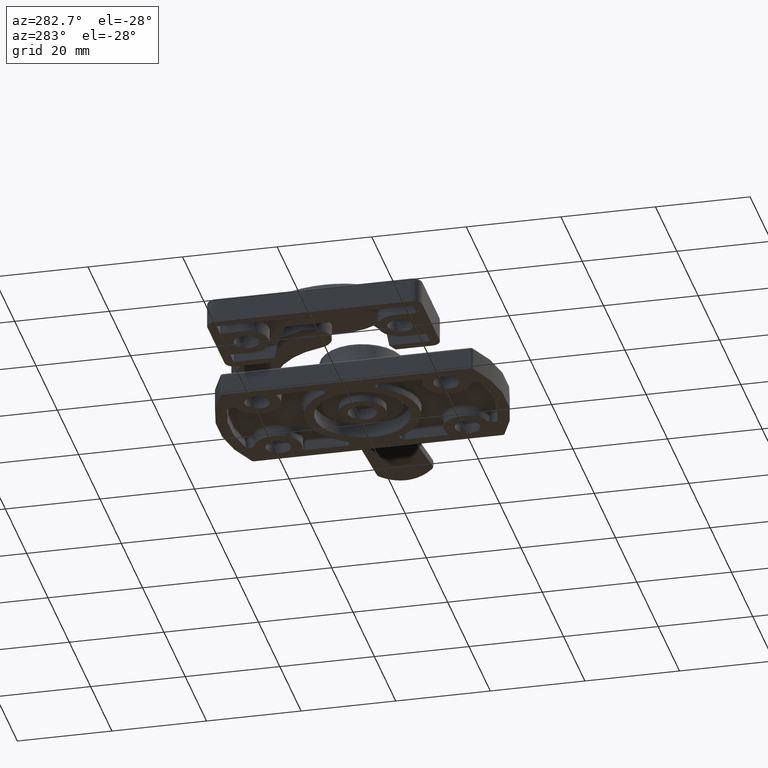
[diagram: clean part render]
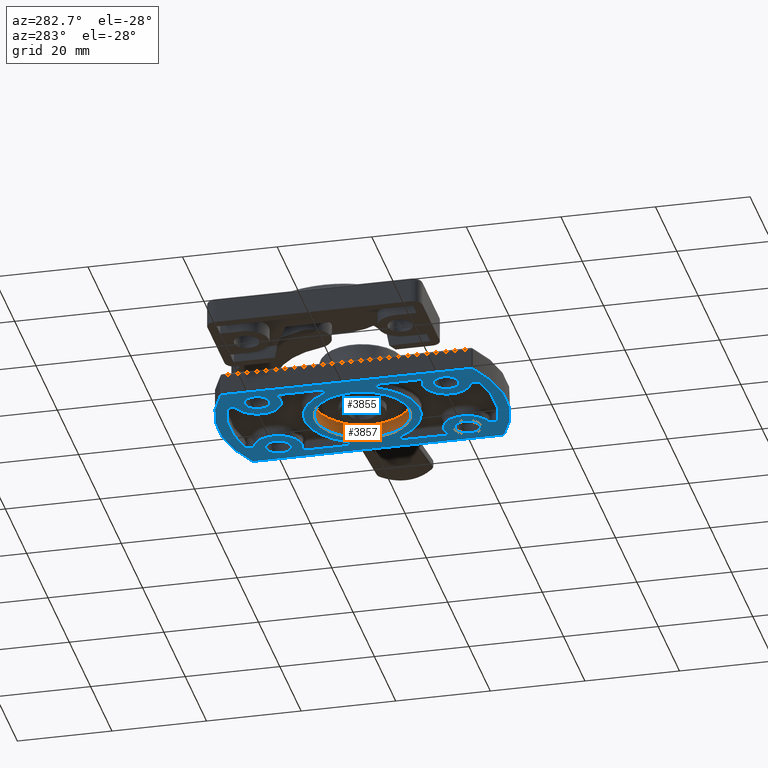
[diagram: same view with the hole feature highlighted: cylindrical wall and planar end face, labeled with their STEP entity ids]
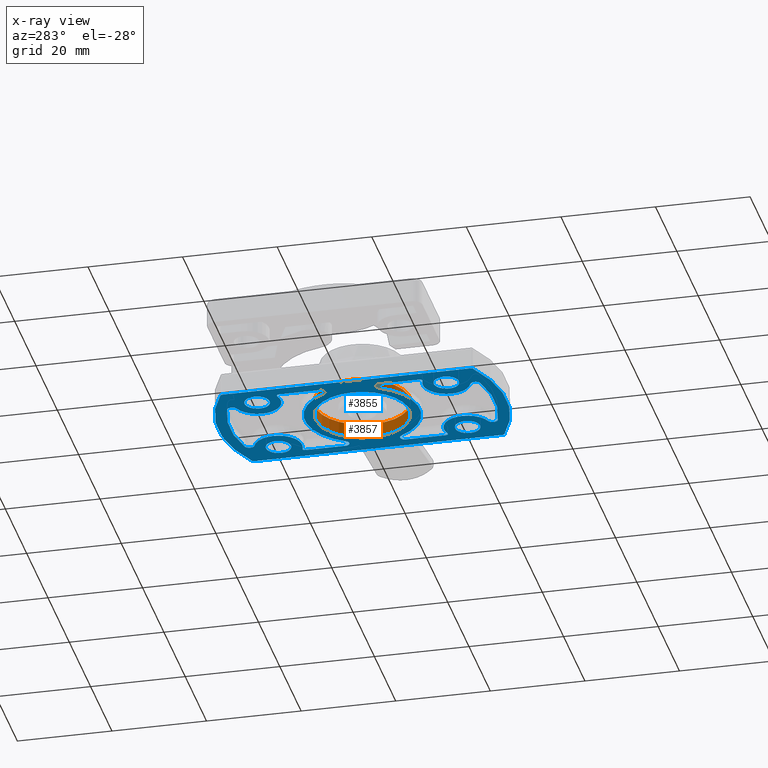
[diagram: x-ray of the same camera — body ghosted, the hole faces saturated]
A machine part, auxiliary view. The highlighted faces form one hole feature of diameter 20 mm: the cylindrical wall (entity #3857, orange) and its adjacent planar end face (entity #3855, blue) — they share a circular edge in the B-rep.
The next image is the same camera in x-ray (body ghosted, the hole faces saturated) — the bore reads through the body.
Wall:
#121=FACE_BOUND('',#1076,.T.);
#656=CYLINDRICAL_SURFACE('',#4231,10.);
#804=FACE_OUTER_BOUND('',#1075,.T.);
#1075=EDGE_LOOP('',(#2938));
#1076=EDGE_LOOP('',(#2939));
#1399=CIRCLE('',#4224,10.);
#1405=CIRCLE('',#4232,10.);
#1752=VERTEX_POINT('',#6347);
#1758=VERTEX_POINT('',#6361);
#2189=EDGE_CURVE('',#1752,#1752,#1399,.T.);
#2195=EDGE_CURVE('',#1758,#1758,#1405,.T.);
#2938=ORIENTED_EDGE('',*,*,#2195,.F.);
#2939=ORIENTED_EDGE('',*,*,#2189,.F.);
#3857=ADVANCED_FACE('',(#804,#121),#656,.F.);
#4224=AXIS2_PLACEMENT_3D('',#6348,#4950,#4951);
#4231=AXIS2_PLACEMENT_3D('',#6360,#4964,#4965);
#4232=AXIS2_PLACEMENT_3D('',#6362,#4966,#4967);
#4950=DIRECTION('center_axis',(0.,0.,1.));
#4951=DIRECTION('ref_axis',(1.,0.,0.));
#4964=DIRECTION('center_axis',(0.,0.,1.));
#4965=DIRECTION('ref_axis',(1.,0.,0.));
#4966=DIRECTION('center_axis',(0.,0.,-1.));
#4967=DIRECTION('ref_axis',(1.,0.,0.));
#6347=CARTESIAN_POINT('',(-10.,1.22464679914735E-15,0.));
#6348=CARTESIAN_POINT('Origin',(0.,0.,0.));
#6360=CARTESIAN_POINT('Origin',(0.,0.,0.));
#6361=CARTESIAN_POINT('',(-10.,1.22464679914735E-15,3.));
#6362=CARTESIAN_POINT('Origin',(0.,0.,3.));
End face:
#109=FACE_BOUND('',#1062,.T.);
#110=FACE_BOUND('',#1063,.T.);
#111=FACE_BOUND('',#1064,.T.);
#112=FACE_BOUND('',#1065,.T.);
#113=FACE_BOUND('',#1066,.T.);
#114=FACE_BOUND('',#1067,.T.);
#115=FACE_BOUND('',#1068,.T.);
#173=PLANE('',#4218);
#252=LINE('',#5905,#441);
#257=LINE('',#5921,#446);
#262=LINE('',#5938,#451);
#266=LINE('',#5952,#455);
#278=LINE('',#6212,#467);
#283=LINE('',#6228,#472);
#292=LINE('',#6259,#481);
#294=LINE('',#6267,#483);
#307=LINE('',#6335,#496);
#308=LINE('',#6338,#497);
#441=VECTOR('',#4625,0.130739666962896);
#446=VECTOR('',#4644,0.130739666962896);
#451=VECTOR('',#4665,8.49902510702414);
#455=VECTOR('',#4683,8.49902510702413);
#467=VECTOR('',#4785,0.130739666962896);
#472=VECTOR('',#4804,8.49902510702414);
#481=VECTOR('',#4841,0.130739666962896);
#483=VECTOR('',#4853,8.49902510702413);
#496=VECTOR('',#4936,52.5261839466756);
#497=VECTOR('',#4941,52.5261839466756);
#802=FACE_OUTER_BOUND('',#1061,.T.);
#1061=EDGE_LOOP('',(#2884,#2885,#2886,#2887,#2888,#2889,#2890,#2891));
#1062=EDGE_LOOP('',(#2892,#2893,#2894,#2895,#2896,#2897,#2898,#2899,#2900,
#2901,#2902,#2903,#2904,#2905,#2906,#2907));
#1063=EDGE_LOOP('',(#2908,#2909,#2910,#2911,#2912,#2913,#2914,#2915,#2916,
#2917,#2918,#2919,#2920,#2921,#2922,#2923));
#1064=EDGE_LOOP('',(#2924));
#1065=EDGE_LOOP('',(#2925));
#1066=EDGE_LOOP('',(#2926));
#1067=EDGE_LOOP('',(#2927));
#1068=EDGE_LOOP('',(#2928));
#1321=CIRCLE('',#4084,0.5);
#1322=CIRCLE('',#4086,5.);
#1323=CIRCLE('',#4088,1.);
#1324=CIRCLE('',#4091,1.);
#1325=CIRCLE('',#4093,28.);
#1326=CIRCLE('',#4095,1.);
#1327=CIRCLE('',#4099,1.);
#1328=CIRCLE('',#4101,12.15);
#1329=CIRCLE('',#4103,0.999999999999999);
#1330=CIRCLE('',#4106,1.);
#1331=CIRCLE('',#4108,5.);
#1332=CIRCLE('',#4110,0.5);
#1361=CIRCLE('',#4155,1.);
#1362=CIRCLE('',#4158,1.);
#1363=CIRCLE('',#4160,5.);
#1364=CIRCLE('',#4162,0.5);
#1365=CIRCLE('',#4165,0.999999999999999);
#1366=CIRCLE('',#4167,12.15);
#1367=CIRCLE('',#4170,1.);
#1368=CIRCLE('',#4172,1.);
#1369=CIRCLE('',#4174,5.);
#1370=CIRCLE('',#4176,1.);
#1371=CIRCLE('',#4179,28.);
#1372=CIRCLE('',#4181,0.5);
#1376=CIRCLE('',#4188,0.5);
#1380=CIRCLE('',#4194,0.5);
#1386=CIRCLE('',#4203,0.5);
#1390=CIRCLE('',#4209,0.5);
#1393=CIRCLE('',#4216,30.5);
#1394=CIRCLE('',#4219,30.5);
#1395=CIRCLE('',#4220,2.65);
#1396=CIRCLE('',#4221,2.65);
#1397=CIRCLE('',#4222,2.65);
#1398=CIRCLE('',#4223,2.65);
#1399=CIRCLE('',#4224,10.);
#1672=VERTEX_POINT('',#5889);
#1673=VERTEX_POINT('',#5891);
#1674=VERTEX_POINT('',#5895);
#1675=VERTEX_POINT('',#5899);
#1676=VERTEX_POINT('',#5903);
#1677=VERTEX_POINT('',#5907);
#1678=VERTEX_POINT('',#5911);
#1679=VERTEX_POINT('',#5915);
#1680=VERTEX_POINT('',#5919);
#1681=VERTEX_POINT('',#5924);
#1682=VERTEX_POINT('',#5926);
#1683=VERTEX_POINT('',#5930);
#1684=VERTEX_POINT('',#5934);
#1685=VERTEX_POINT('',#5940);
#1686=VERTEX_POINT('',#5944);
#1687=VERTEX_POINT('',#5948);
#1712=VERTEX_POINT('',#6204);
#1713=VERTEX_POINT('',#6206);
#1714=VERTEX_POINT('',#6210);
#1715=VERTEX_POINT('',#6214);
#1716=VERTEX_POINT('',#6218);
#1717=VERTEX_POINT('',#6222);
#1718=VERTEX_POINT('',#6226);
#1719=VERTEX_POINT('',#6230);
#1720=VERTEX_POINT('',#6234);
#1721=VERTEX_POINT('',#6239);
#1722=VERTEX_POINT('',#6243);
#1723=VERTEX_POINT('',#6245);
#1724=VERTEX_POINT('',#6249);
#1725=VERTEX_POINT('',#6253);
#1726=VERTEX_POINT('',#6255);
#1727=VERTEX_POINT('',#6263);
#1731=VERTEX_POINT('',#6276);
#1732=VERTEX_POINT('',#6277);
#1736=VERTEX_POINT('',#6289);
#1737=VERTEX_POINT('',#6290);
#1741=VERTEX_POINT('',#6305);
#1742=VERTEX_POINT('',#6306);
#1746=VERTEX_POINT('',#6318);
#1747=VERTEX_POINT('',#6319);
#1748=VERTEX_POINT('',#6339);
#1749=VERTEX_POINT('',#6341);
#1750=VERTEX_POINT('',#6343);
#1751=VERTEX_POINT('',#6345);
#1752=VERTEX_POINT('',#6347);
#2046=EDGE_CURVE('',#1673,#1672,#1321,.T.);
#2049=EDGE_CURVE('',#1672,#1674,#1322,.T.);
#2051=EDGE_CURVE('',#1675,#1674,#1323,.T.);
#2053=EDGE_CURVE('',#1675,#1676,#252,.T.);
#2055=EDGE_CURVE('',#1677,#1676,#1324,.T.);
#2057=EDGE_CURVE('',#1677,#1678,#1325,.T.);
#2059=EDGE_CURVE('',#1679,#1678,#1326,.T.);
#2061=EDGE_CURVE('',#1679,#1680,#257,.T.);
#2063=EDGE_CURVE('',#1682,#1681,#1327,.F.);
#2066=EDGE_CURVE('',#1681,#1683,#1328,.T.);
#2068=EDGE_CURVE('',#1683,#1684,#1329,.F.);
#2069=EDGE_CURVE('',#1684,#1673,#262,.T.);
#2071=EDGE_CURVE('',#1685,#1680,#1330,.T.);
#2073=EDGE_CURVE('',#1685,#1686,#1331,.T.);
#2075=EDGE_CURVE('',#1686,#1687,#1332,.T.);
#2076=EDGE_CURVE('',#1687,#1682,#266,.T.);
#2118=EDGE_CURVE('',#1712,#1713,#1361,.T.);
#2121=EDGE_CURVE('',#1712,#1714,#278,.T.);
#2123=EDGE_CURVE('',#1715,#1714,#1362,.T.);
#2125=EDGE_CURVE('',#1715,#1716,#1363,.T.);
#2127=EDGE_CURVE('',#1716,#1717,#1364,.T.);
#2129=EDGE_CURVE('',#1717,#1718,#283,.T.);
#2131=EDGE_CURVE('',#1718,#1719,#1365,.F.);
#2133=EDGE_CURVE('',#1719,#1720,#1366,.T.);
#2135=EDGE_CURVE('',#1720,#1721,#1367,.F.);
#2137=EDGE_CURVE('',#1722,#1723,#1368,.T.);
#2139=EDGE_CURVE('',#1724,#1723,#1369,.T.);
#2142=EDGE_CURVE('',#1725,#1726,#1370,.T.);
#2144=EDGE_CURVE('',#1722,#1726,#292,.T.);
#2145=EDGE_CURVE('',#1725,#1713,#1371,.T.);
#2146=EDGE_CURVE('',#1727,#1724,#1372,.T.);
#2148=EDGE_CURVE('',#1721,#1727,#294,.T.);
#2152=EDGE_CURVE('',#1731,#1732,#1376,.T.);
#2158=EDGE_CURVE('',#1736,#1737,#1380,.T.);
#2166=EDGE_CURVE('',#1741,#1742,#1386,.T.);
#2172=EDGE_CURVE('',#1746,#1747,#1390,.T.);
#2181=EDGE_CURVE('',#1731,#1737,#1393,.T.);
#2182=EDGE_CURVE('',#1736,#1747,#307,.T.);
#2183=EDGE_CURVE('',#1746,#1742,#1394,.T.);
#2184=EDGE_CURVE('',#1741,#1732,#308,.T.);
#2185=EDGE_CURVE('',#1748,#1748,#1395,.T.);
#2186=EDGE_CURVE('',#1749,#1749,#1396,.T.);
#2187=EDGE_CURVE('',#1750,#1750,#1397,.T.);
#2188=EDGE_CURVE('',#1751,#1751,#1398,.T.);
#2189=EDGE_CURVE('',#1752,#1752,#1399,.T.);
#2884=ORIENTED_EDGE('',*,*,#2152,.F.);
#2885=ORIENTED_EDGE('',*,*,#2181,.T.);
#2886=ORIENTED_EDGE('',*,*,#2158,.F.);
#2887=ORIENTED_EDGE('',*,*,#2182,.T.);
#2888=ORIENTED_EDGE('',*,*,#2172,.F.);
#2889=ORIENTED_EDGE('',*,*,#2183,.T.);
#2890=ORIENTED_EDGE('',*,*,#2166,.F.);
#2891=ORIENTED_EDGE('',*,*,#2184,.T.);
#2892=ORIENTED_EDGE('',*,*,#2063,.T.);
#2893=ORIENTED_EDGE('',*,*,#2066,.T.);
#2894=ORIENTED_EDGE('',*,*,#2068,.T.);
#2895=ORIENTED_EDGE('',*,*,#2069,.T.);
#2896=ORIENTED_EDGE('',*,*,#2046,.T.);
#2897=ORIENTED_EDGE('',*,*,#2049,.T.);
#2898=ORIENTED_EDGE('',*,*,#2051,.F.);
#2899=ORIENTED_EDGE('',*,*,#2053,.T.);
#2900=ORIENTED_EDGE('',*,*,#2055,.F.);
#2901=ORIENTED_EDGE('',*,*,#2057,.T.);
#2902=ORIENTED_EDGE('',*,*,#2059,.F.);
#2903=ORIENTED_EDGE('',*,*,#2061,.T.);
#2904=ORIENTED_EDGE('',*,*,#2071,.F.);
#2905=ORIENTED_EDGE('',*,*,#2073,.T.);
#2906=ORIENTED_EDGE('',*,*,#2075,.T.);
#2907=ORIENTED_EDGE('',*,*,#2076,.T.);
#2908=ORIENTED_EDGE('',*,*,#2127,.T.);
#2909=ORIENTED_EDGE('',*,*,#2129,.T.);
#2910=ORIENTED_EDGE('',*,*,#2131,.T.);
#2911=ORIENTED_EDGE('',*,*,#2133,.T.);
#2912=ORIENTED_EDGE('',*,*,#2135,.T.);
#2913=ORIENTED_EDGE('',*,*,#2148,.T.);
#2914=ORIENTED_EDGE('',*,*,#2146,.T.);
#2915=ORIENTED_EDGE('',*,*,#2139,.T.);
#2916=ORIENTED_EDGE('',*,*,#2137,.F.);
#2917=ORIENTED_EDGE('',*,*,#2144,.T.);
#2918=ORIENTED_EDGE('',*,*,#2142,.F.);
#2919=ORIENTED_EDGE('',*,*,#2145,.T.);
#2920=ORIENTED_EDGE('',*,*,#2118,.F.);
#2921=ORIENTED_EDGE('',*,*,#2121,.T.);
#2922=ORIENTED_EDGE('',*,*,#2123,.F.);
#2923=ORIENTED_EDGE('',*,*,#2125,.T.);
#2924=ORIENTED_EDGE('',*,*,#2185,.T.);
#2925=ORIENTED_EDGE('',*,*,#2186,.T.);
#2926=ORIENTED_EDGE('',*,*,#2187,.T.);
#2927=ORIENTED_EDGE('',*,*,#2188,.T.);
#2928=ORIENTED_EDGE('',*,*,#2189,.T.);
#3855=ADVANCED_FACE('',(#802,#109,#110,#111,#112,#113,#114,#115),#173,.F.);
#4084=AXIS2_PLACEMENT_3D('',#5892,#4609,#4610);
#4086=AXIS2_PLACEMENT_3D('',#5897,#4615,#4616);
#4088=AXIS2_PLACEMENT_3D('',#5901,#4620,#4621);
#4091=AXIS2_PLACEMENT_3D('',#5909,#4629,#4630);
#4093=AXIS2_PLACEMENT_3D('',#5913,#4634,#4635);
#4095=AXIS2_PLACEMENT_3D('',#5917,#4639,#4640);
#4099=AXIS2_PLACEMENT_3D('',#5927,#4650,#4651);
#4101=AXIS2_PLACEMENT_3D('',#5932,#4656,#4657);
#4103=AXIS2_PLACEMENT_3D('',#5936,#4661,#4662);
#4106=AXIS2_PLACEMENT_3D('',#5942,#4669,#4670);
#4108=AXIS2_PLACEMENT_3D('',#5946,#4674,#4675);
#4110=AXIS2_PLACEMENT_3D('',#5950,#4679,#4680);
#4155=AXIS2_PLACEMENT_3D('',#6207,#4779,#4780);
#4158=AXIS2_PLACEMENT_3D('',#6216,#4789,#4790);
#4160=AXIS2_PLACEMENT_3D('',#6220,#4794,#4795);
#4162=AXIS2_PLACEMENT_3D('',#6224,#4799,#4800);
#4165=AXIS2_PLACEMENT_3D('',#6232,#4808,#4809);
#4167=AXIS2_PLACEMENT_3D('',#6236,#4813,#4814);
#4170=AXIS2_PLACEMENT_3D('',#6241,#4820,#4821);
#4172=AXIS2_PLACEMENT_3D('',#6246,#4825,#4826);
#4174=AXIS2_PLACEMENT_3D('',#6250,#4830,#4831);
#4176=AXIS2_PLACEMENT_3D('',#6256,#4836,#4837);
#4179=AXIS2_PLACEMENT_3D('',#6261,#4844,#4845);
#4181=AXIS2_PLACEMENT_3D('',#6264,#4848,#4849);
#4188=AXIS2_PLACEMENT_3D('',#6278,#4864,#4865);
#4194=AXIS2_PLACEMENT_3D('',#6291,#4878,#4879);
#4203=AXIS2_PLACEMENT_3D('',#6307,#4898,#4899);
#4209=AXIS2_PLACEMENT_3D('',#6320,#4912,#4913);
#4216=AXIS2_PLACEMENT_3D('',#6333,#4932,#4933);
#4218=AXIS2_PLACEMENT_3D('',#6336,#4937,#4938);
#4219=AXIS2_PLACEMENT_3D('',#6337,#4939,#4940);
#4220=AXIS2_PLACEMENT_3D('',#6340,#4942,#4943);
#4221=AXIS2_PLACEMENT_3D('',#6342,#4944,#4945);
#4222=AXIS2_PLACEMENT_3D('',#6344,#4946,#4947);
#4223=AXIS2_PLACEMENT_3D('',#6346,#4948,#4949);
#4224=AXIS2_PLACEMENT_3D('',#6348,#4950,#4951);
#4609=DIRECTION('center_axis',(0.,0.,1.));
#4610=DIRECTION('ref_axis',(1.,0.,0.));
#4615=DIRECTION('center_axis',(0.,0.,-1.));
#4616=DIRECTION('ref_axis',(0.200000000000001,-0.979795897113271,0.));
#4620=DIRECTION('center_axis',(0.,0.,-1.));
#4621=DIRECTION('ref_axis',(0.816496580927728,-0.577350269189623,0.));
#4625=DIRECTION('',(0.,1.,0.));
#4629=DIRECTION('center_axis',(0.,0.,-1.));
#4630=DIRECTION('ref_axis',(0.805076485899414,0.593171014001739,0.));
#4634=DIRECTION('center_axis',(0.,0.,1.));
#4635=DIRECTION('ref_axis',(0.321428571428571,0.946933827397347,0.));
#4639=DIRECTION('center_axis',(0.,0.,-1.));
#4640=DIRECTION('ref_axis',(-0.805076485899415,0.593171014001738,0.));
#4644=DIRECTION('',(0.,-1.,0.));
#4650=DIRECTION('center_axis',(0.,0.,-1.));
#4651=DIRECTION('ref_axis',(1.,0.,0.));
#4656=DIRECTION('center_axis',(0.,0.,-1.));
#4657=DIRECTION('ref_axis',(1.,0.,0.));
#4661=DIRECTION('center_axis',(0.,0.,-1.));
#4662=DIRECTION('ref_axis',(-1.,0.,0.));
#4665=DIRECTION('',(2.13987450635274E-16,1.,0.));
#4669=DIRECTION('center_axis',(0.,0.,-1.));
#4670=DIRECTION('ref_axis',(-0.816496580927726,-0.577350269189626,0.));
#4674=DIRECTION('center_axis',(0.,0.,-1.));
#4675=DIRECTION('ref_axis',(0.363636363636364,0.9315409787236,0.));
#4679=DIRECTION('center_axis',(0.,0.,1.));
#4680=DIRECTION('ref_axis',(0.363636363636367,0.931540978723599,0.));
#4683=DIRECTION('',(0.,-1.,0.));
#4779=DIRECTION('center_axis',(0.,0.,-1.));
#4780=DIRECTION('ref_axis',(0.805076485899414,-0.593171014001739,0.));
#4785=DIRECTION('',(0.,1.,0.));
#4789=DIRECTION('center_axis',(0.,0.,-1.));
#4790=DIRECTION('ref_axis',(0.816496580927728,0.577350269189623,0.));
#4794=DIRECTION('center_axis',(0.,0.,-1.));
#4795=DIRECTION('ref_axis',(0.200000000000001,0.979795897113271,0.));
#4799=DIRECTION('center_axis',(0.,0.,1.));
#4800=DIRECTION('ref_axis',(1.,0.,0.));
#4804=DIRECTION('',(-2.13987450635274E-16,1.,0.));
#4808=DIRECTION('center_axis',(0.,0.,-1.));
#4809=DIRECTION('ref_axis',(-1.,0.,0.));
#4813=DIRECTION('center_axis',(0.,0.,-1.));
#4814=DIRECTION('ref_axis',(1.,0.,0.));
#4820=DIRECTION('center_axis',(0.,0.,-1.));
#4821=DIRECTION('ref_axis',(1.,0.,0.));
#4825=DIRECTION('center_axis',(0.,0.,-1.));
#4826=DIRECTION('ref_axis',(-0.816496580927726,0.577350269189626,0.));
#4830=DIRECTION('center_axis',(0.,0.,-1.));
#4831=DIRECTION('ref_axis',(0.363636363636364,-0.9315409787236,0.));
#4836=DIRECTION('center_axis',(0.,0.,-1.));
#4837=DIRECTION('ref_axis',(-0.805076485899415,-0.593171014001738,0.));
#4841=DIRECTION('',(0.,-1.,0.));
#4844=DIRECTION('center_axis',(0.,0.,1.));
#4845=DIRECTION('ref_axis',(0.321428571428571,-0.946933827397347,0.));
#4848=DIRECTION('center_axis',(0.,0.,1.));
#4849=DIRECTION('ref_axis',(0.363636363636367,-0.931540978723599,0.));
#4853=DIRECTION('',(0.,-1.,0.));
#4864=DIRECTION('center_axis',(0.,0.,1.));
#4865=DIRECTION('ref_axis',(-0.861200712184254,0.508265022732564,0.));
#4878=DIRECTION('center_axis',(0.,0.,1.));
#4879=DIRECTION('ref_axis',(0.861200712184255,0.508265022732562,0.));
#4898=DIRECTION('center_axis',(0.,0.,1.));
#4899=DIRECTION('ref_axis',(-0.861200712184252,-0.508265022732567,0.));
#4912=DIRECTION('center_axis',(0.,0.,1.));
#4913=DIRECTION('ref_axis',(0.861200712184252,-0.508265022732567,0.));
#4932=DIRECTION('center_axis',(0.,0.,-1.));
#4933=DIRECTION('ref_axis',(-0.491803278688525,-0.870706342615705,0.));
#4936=DIRECTION('',(4.1806006369944E-17,-1.,0.));
#4937=DIRECTION('center_axis',(0.,0.,1.));
#4938=DIRECTION('ref_axis',(1.,0.,0.));
#4939=DIRECTION('center_axis',(0.,0.,-1.));
#4940=DIRECTION('ref_axis',(0.491803278688525,0.870706342615705,0.));
#4941=DIRECTION('',(0.,1.,0.));
#4942=DIRECTION('center_axis',(0.,0.,1.));
#4943=DIRECTION('ref_axis',(1.,0.,0.));
#4944=DIRECTION('center_axis',(0.,0.,1.));
#4945=DIRECTION('ref_axis',(1.,0.,0.));
#4946=DIRECTION('center_axis',(0.,0.,1.));
#4947=DIRECTION('ref_axis',(1.,0.,0.));
#4948=DIRECTION('center_axis',(0.,0.,1.));
#4949=DIRECTION('ref_axis',(1.,0.,0.));
#4950=DIRECTION('center_axis',(0.,0.,1.));
#4951=DIRECTION('ref_axis',(1.,0.,0.));
#5889=CARTESIAN_POINT('',(11.8181818181818,15.342295106382,0.));
#5891=CARTESIAN_POINT('',(12.5,14.8765246170202,0.));
#5892=CARTESIAN_POINT('Origin',(12.,14.8765246170202,0.));
#5895=CARTESIAN_POINT('',(8.33333333333333,24.7140452079103,0.));
#5897=CARTESIAN_POINT('Origin',(10.,20.,0.));
#5899=CARTESIAN_POINT('',(9.,25.6568542494924,0.));
#5901=CARTESIAN_POINT('Origin',(8.,25.6568542494924,0.));
#5903=CARTESIAN_POINT('',(9.,25.7875939164553,0.));
#5905=CARTESIAN_POINT('',(9.,13.2570735835629,0.));
#5907=CARTESIAN_POINT('',(8.29629629629629,26.7426899874351,0.));
#5909=CARTESIAN_POINT('Origin',(8.,25.7875939164553,0.));
#5911=CARTESIAN_POINT('',(-8.2962962962963,26.7426899874351,0.));
#5913=CARTESIAN_POINT('Origin',(0.,0.,0.));
#5915=CARTESIAN_POINT('',(-9.,25.7875939164553,0.));
#5917=CARTESIAN_POINT('Origin',(-8.,25.7875939164553,0.));
#5919=CARTESIAN_POINT('',(-9.,25.6568542494924,0.));
#5921=CARTESIAN_POINT('',(-9.,12.4494897427832,0.));
#5924=CARTESIAN_POINT('',(-10.6254752851711,5.89251855866557,0.));
#5926=CARTESIAN_POINT('',(-12.5,6.37749950999607,0.));
#5927=CARTESIAN_POINT('Origin',(-11.5,6.37749950999607,0.));
#5930=CARTESIAN_POINT('',(10.6254752851711,5.89251855866556,0.));
#5932=CARTESIAN_POINT('Origin',(0.,0.,0.));
#5934=CARTESIAN_POINT('',(12.5,6.37749950999606,0.));
#5936=CARTESIAN_POINT('Origin',(11.5,6.37749950999606,0.));
#5938=CARTESIAN_POINT('',(12.5,7.4382623085101,0.));
#5940=CARTESIAN_POINT('',(-8.33333333333333,24.7140452079103,0.));
#5942=CARTESIAN_POINT('Origin',(-8.,25.6568542494924,0.));
#5944=CARTESIAN_POINT('',(-11.8181818181818,15.342295106382,0.));
#5946=CARTESIAN_POINT('Origin',(-10.,20.,0.));
#5948=CARTESIAN_POINT('',(-12.5,14.8765246170202,0.));
#5950=CARTESIAN_POINT('Origin',(-12.,14.8765246170202,0.));
#5952=CARTESIAN_POINT('',(-12.5,2.25,0.));
#6204=CARTESIAN_POINT('',(9.,-25.7875939164553,0.));
#6206=CARTESIAN_POINT('',(8.29629629629629,-26.7426899874351,0.));
#6207=CARTESIAN_POINT('Origin',(8.,-25.7875939164553,0.));
#6210=CARTESIAN_POINT('',(9.,-25.6568542494924,0.));
#6212=CARTESIAN_POINT('',(9.,-13.2570735835629,0.));
#6214=CARTESIAN_POINT('',(8.33333333333333,-24.7140452079103,0.));
#6216=CARTESIAN_POINT('Origin',(8.,-25.6568542494924,0.));
#6218=CARTESIAN_POINT('',(11.8181818181818,-15.342295106382,0.));
#6220=CARTESIAN_POINT('Origin',(10.,-20.,0.));
#6222=CARTESIAN_POINT('',(12.5,-14.8765246170202,0.));
#6224=CARTESIAN_POINT('Origin',(12.,-14.8765246170202,0.));
#6226=CARTESIAN_POINT('',(12.5,-6.37749950999606,0.));
#6228=CARTESIAN_POINT('',(12.5,-7.4382623085101,0.));
#6230=CARTESIAN_POINT('',(10.6254752851711,-5.89251855866556,0.));
#6232=CARTESIAN_POINT('Origin',(11.5,-6.37749950999606,0.));
#6234=CARTESIAN_POINT('',(-10.6254752851711,-5.89251855866557,0.));
#6236=CARTESIAN_POINT('Origin',(0.,0.,0.));
#6239=CARTESIAN_POINT('',(-12.5,-6.37749950999607,0.));
#6241=CARTESIAN_POINT('Origin',(-11.5,-6.37749950999607,0.));
#6243=CARTESIAN_POINT('',(-9.,-25.6568542494924,0.));
#6245=CARTESIAN_POINT('',(-8.33333333333333,-24.7140452079103,0.));
#6246=CARTESIAN_POINT('Origin',(-8.,-25.6568542494924,0.));
#6249=CARTESIAN_POINT('',(-11.8181818181818,-15.342295106382,0.));
#6250=CARTESIAN_POINT('Origin',(-10.,-20.,0.));
#6253=CARTESIAN_POINT('',(-8.2962962962963,-26.7426899874351,0.));
#6255=CARTESIAN_POINT('',(-9.,-25.7875939164553,0.));
#6256=CARTESIAN_POINT('Origin',(-8.,-25.7875939164553,0.));
#6259=CARTESIAN_POINT('',(-9.,-12.4494897427832,0.));
#6261=CARTESIAN_POINT('Origin',(0.,0.,0.));
#6263=CARTESIAN_POINT('',(-12.5,-14.8765246170202,0.));
#6264=CARTESIAN_POINT('Origin',(-12.,-14.8765246170202,0.));
#6267=CARTESIAN_POINT('',(-12.5,-2.25,0.));
#6276=CARTESIAN_POINT('',(-14.7416666666667,26.7008101728934,0.));
#6277=CARTESIAN_POINT('',(-15.,26.2630919733378,0.));
#6278=CARTESIAN_POINT('Origin',(-14.5,26.2630919733378,0.));
#6289=CARTESIAN_POINT('',(15.,26.2630919733378,0.));
#6290=CARTESIAN_POINT('',(14.7416666666667,26.7008101728934,0.));
#6291=CARTESIAN_POINT('Origin',(14.5,26.2630919733378,0.));
#6305=CARTESIAN_POINT('',(-15.,-26.2630919733378,0.));
#6306=CARTESIAN_POINT('',(-14.7416666666667,-26.7008101728934,0.));
#6307=CARTESIAN_POINT('Origin',(-14.5,-26.2630919733378,0.));
#6318=CARTESIAN_POINT('',(14.7416666666667,-26.7008101728934,0.));
#6319=CARTESIAN_POINT('',(15.,-26.2630919733378,0.));
#6320=CARTESIAN_POINT('Origin',(14.5,-26.2630919733378,0.));
#6333=CARTESIAN_POINT('Origin',(0.,0.,0.));
#6335=CARTESIAN_POINT('',(15.,26.556543449779,0.));
#6336=CARTESIAN_POINT('Origin',(3.7472076254888E-17,-1.11022302462516E-15,
0.));
#6337=CARTESIAN_POINT('Origin',(0.,0.,0.));
#6338=CARTESIAN_POINT('',(-15.,-26.556543449779,0.));
#6339=CARTESIAN_POINT('',(-12.65,20.,0.));
#6340=CARTESIAN_POINT('Origin',(-10.,20.,0.));
#6341=CARTESIAN_POINT('',(7.35,20.,0.));
#6342=CARTESIAN_POINT('Origin',(10.,20.,0.));
#6343=CARTESIAN_POINT('',(-12.65,-20.,0.));
#6344=CARTESIAN_POINT('Origin',(-10.,-20.,0.));
#6345=CARTESIAN_POINT('',(7.35,-20.,0.));
#6346=CARTESIAN_POINT('Origin',(10.,-20.,0.));
#6347=CARTESIAN_POINT('',(-10.,1.22464679914735E-15,0.));
#6348=CARTESIAN_POINT('Origin',(0.,0.,0.));